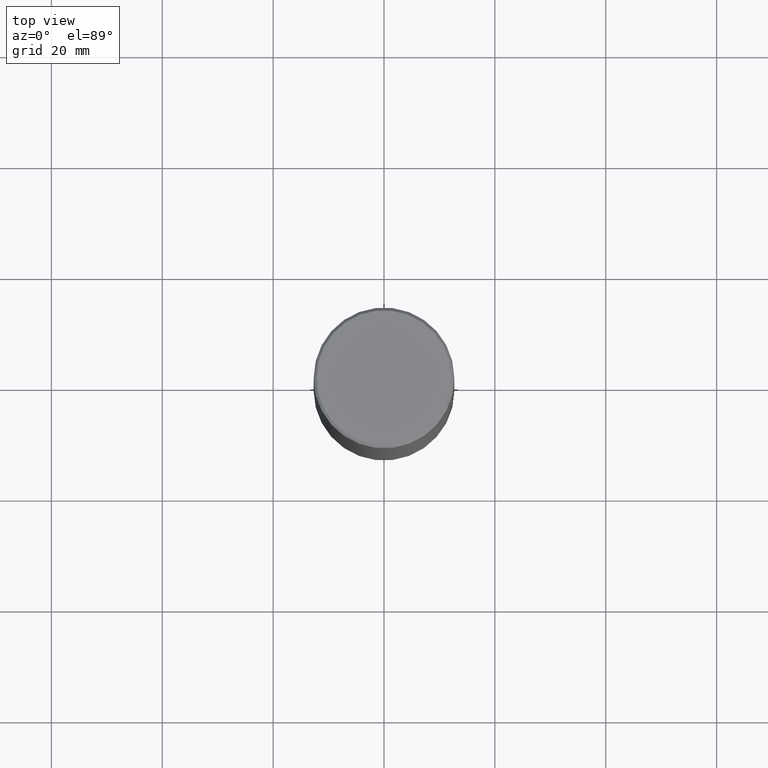
[diagram: clean part render]
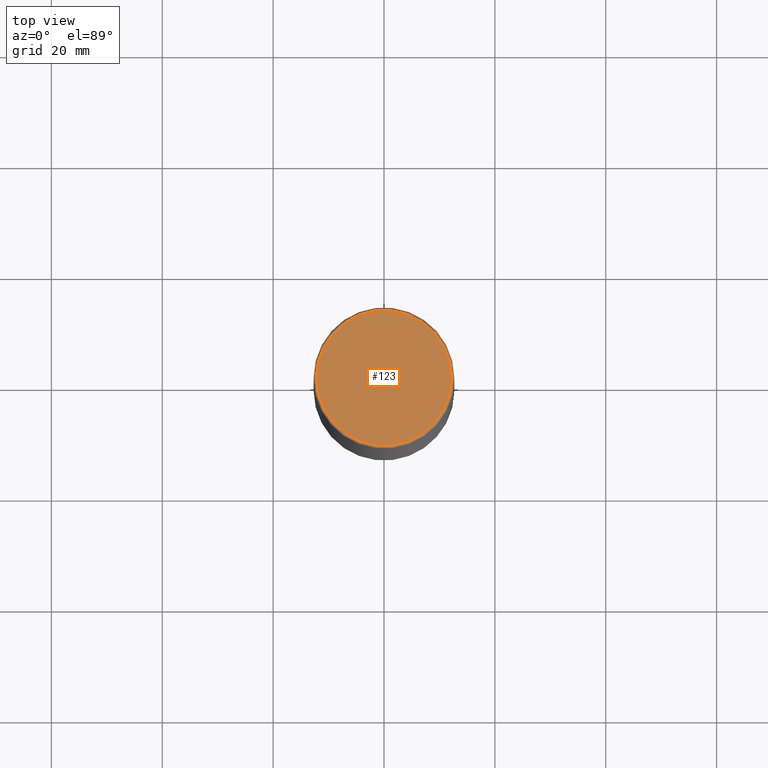
[diagram: same view with one face highlighted and labeled with its STEP entity id]
A machine part, top view. The second image highlights one B-rep face of the part: STEP entity #123.
In plain terms, the highlighted planar face has unit normal (0, -0, -1).
Its self-contained STEP definition (entity closure, byte-faithful):
#12 = AXIS2_PLACEMENT_3D ( 'NONE', #42, #152, #115 ) ;
#38 = VERTEX_POINT ( 'NONE', #355 ) ;
#42 = CARTESIAN_POINT ( 'NONE',  ( 3.351822085289404392E-15, 0.4799999999999995381, -1.669508273909557670E-15 ) ) ;
#47 = DIRECTION ( 'NONE',  ( 1.000000000000000000, -6.982962677686266711E-15, 4.876036955247133888E-29 ) ) ;
#92 = FACE_OUTER_BOUND ( 'NONE', #287, .T. ) ;
#97 = CIRCLE ( 'NONE', #358, 0.4799999999999995381 ) ;
#107 = CARTESIAN_POINT ( 'NONE',  ( -3.131554243005659264E-46, 4.471029511141341874E-32, 1.280553747030123384E-17 ) ) ;
#115 = DIRECTION ( 'NONE',  ( -1.000000000000000000, 6.982962677686265922E-15, -4.876176775795935793E-29 ) ) ;
#123 = ADVANCED_FACE ( 'NONE', ( #92 ), #299, .F. ) ;
#128 = DIRECTION ( 'NONE',  ( 1.000000000000000000, -6.982962677686266711E-15, 4.876036955247133888E-29 ) ) ;
#138 = ORIENTED_EDGE ( 'NONE', *, *, #319, .T. ) ;
#152 = DIRECTION ( 'NONE',  ( 2.438088387897960049E-29, -3.491481338843145188E-15, -1.000000000000000000 ) ) ;
#160 = CARTESIAN_POINT ( 'NONE',  ( -3.131554243005659264E-46, 4.471029511141341874E-32, 1.280553747030123384E-17 ) ) ;
#255 = EDGE_CURVE ( 'NONE', #38, #356, #97, .T. ) ;
#264 = ORIENTED_EDGE ( 'NONE', *, *, #255, .T. ) ;
#285 = DIRECTION ( 'NONE',  ( -2.445468806185136597E-29, 3.491481338843145583E-15, 1.000000000000000000 ) ) ;
#287 = EDGE_LOOP ( 'NONE', ( #264, #138 ) ) ;
#288 = AXIS2_PLACEMENT_3D ( 'NONE', #107, #285, #47 ) ;
#299 = PLANE ( 'NONE',  #12 ) ;
#305 = DIRECTION ( 'NONE',  ( -2.445468806185136597E-29, 3.491481338843145583E-15, 1.000000000000000000 ) ) ;
#308 = CARTESIAN_POINT ( 'NONE',  ( 0.4799999999999995381, -3.396558832296479338E-15, 1.280553747032483033E-17 ) ) ;
#312 = CIRCLE ( 'NONE', #288, 0.4799999999999995381 ) ;
#319 = EDGE_CURVE ( 'NONE', #356, #38, #312, .T. ) ;
#355 = CARTESIAN_POINT ( 'NONE',  ( -0.4799999999999995381, 3.386736898677836041E-15, 1.280553747027767124E-17 ) ) ;
#356 = VERTEX_POINT ( 'NONE', #308 ) ;
#358 = AXIS2_PLACEMENT_3D ( 'NONE', #160, #305, #128 ) ;